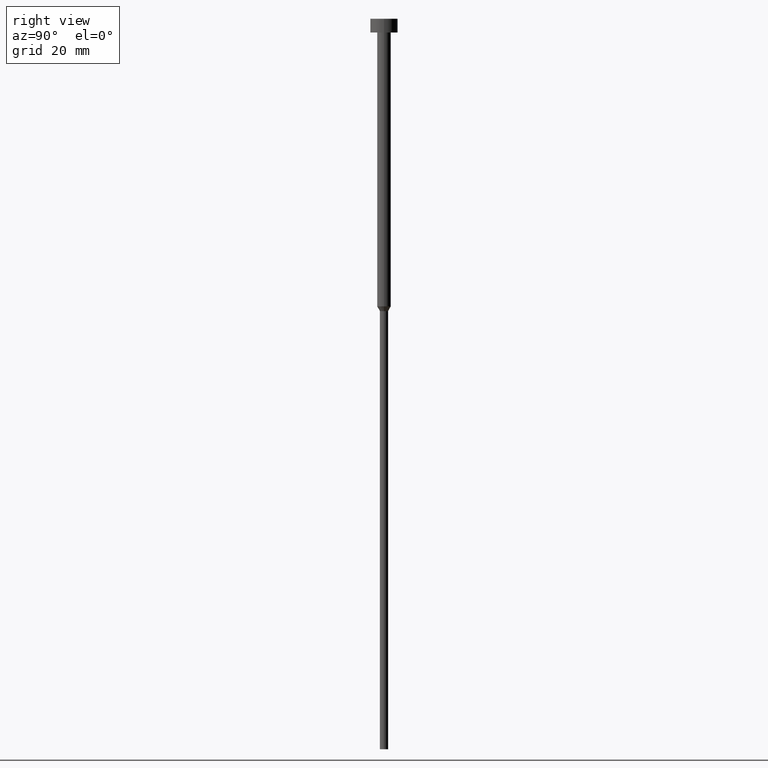
[diagram: clean part render]
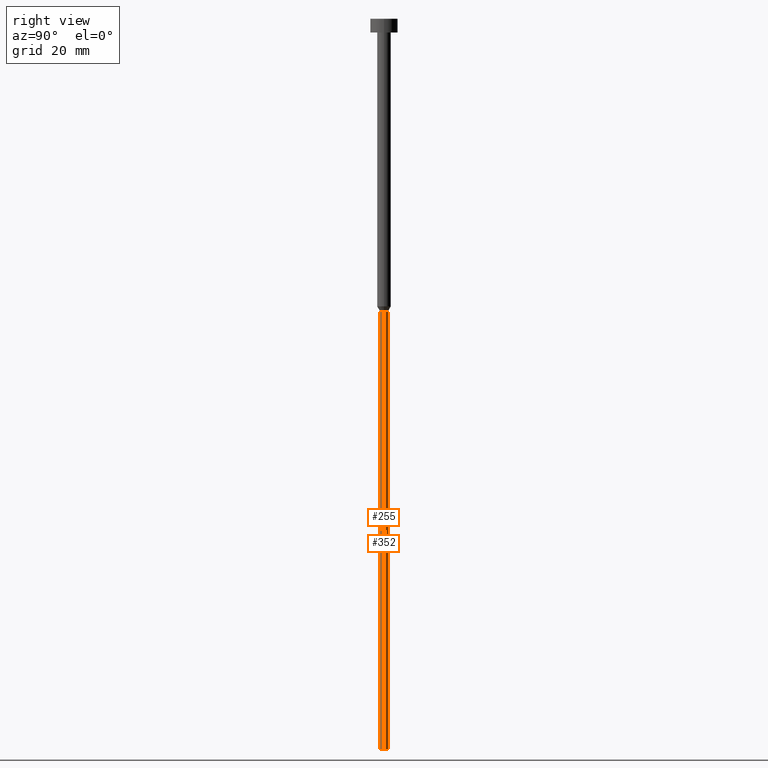
[diagram: same view with one multi-face feature highlighted, each face labeled with its STEP entity id]
A machine part, right view. The highlighted faces form ONE feature: a constant-radius fillet chain: 2 tangent blend faces with common blend radius 0.9 mm. The faces share edges in the B-rep.
Their STEP definitions:
[1] entity #352 (Cylinder):
#6 = AXIS2_PLACEMENT_3D ( 'NONE', #308, #95, #64 ) ;
#19 = VERTEX_POINT ( 'NONE', #156 ) ;
#22 = ORIENTED_EDGE ( 'NONE', *, *, #91, .T. ) ;
#34 = CIRCLE ( 'NONE', #134, 0.9000000000000000222 ) ;
#36 = CYLINDRICAL_SURFACE ( 'NONE', #6, 0.9000000000000000222 ) ;
#55 = CARTESIAN_POINT ( 'NONE',  ( 0.9000000000000000222, 0.000000000000000000, -160.0000000000000000 ) ) ;
#64 = DIRECTION ( 'NONE',  ( 1.000000000000000000, 0.000000000000000000, 0.000000000000000000 ) ) ;
#71 = ORIENTED_EDGE ( 'NONE', *, *, #152, .T. ) ;
#91 = EDGE_CURVE ( 'NONE', #205, #321, #349, .T. ) ;
#93 = VECTOR ( 'NONE', #249, 1000.000000000000000 ) ;
#95 = DIRECTION ( 'NONE',  ( -0.000000000000000000, -0.000000000000000000, 1.000000000000000000 ) ) ;
#127 = VERTEX_POINT ( 'NONE', #355 ) ;
#128 = AXIS2_PLACEMENT_3D ( 'NONE', #248, #160, #295 ) ;
#133 = CARTESIAN_POINT ( 'NONE',  ( -0.9000000000000000222, 1.102182119232617788E-16, 0.000000000000000000 ) ) ;
#134 = AXIS2_PLACEMENT_3D ( 'NONE', #307, #253, #141 ) ;
#139 = FACE_OUTER_BOUND ( 'NONE', #305, .T. ) ;
#141 = DIRECTION ( 'NONE',  ( 1.000000000000000000, 0.000000000000000000, 0.000000000000000000 ) ) ;
#152 = EDGE_CURVE ( 'NONE', #321, #19, #214, .T. ) ;
#154 = ORIENTED_EDGE ( 'NONE', *, *, #243, .F. ) ;
#156 = CARTESIAN_POINT ( 'NONE',  ( -0.9000000000000000222, 1.102182119232617788E-16, -64.03923048454132072 ) ) ;
#160 = DIRECTION ( 'NONE',  ( -0.000000000000000000, -0.000000000000000000, 1.000000000000000000 ) ) ;
#163 = CARTESIAN_POINT ( 'NONE',  ( -0.9000000000000000222, 1.102182119232617788E-16, -160.0000000000000000 ) ) ;
#205 = VERTEX_POINT ( 'NONE', #55 ) ;
#207 = VECTOR ( 'NONE', #209, 1000.000000000000000 ) ;
#209 = DIRECTION ( 'NONE',  ( -0.000000000000000000, -0.000000000000000000, 1.000000000000000000 ) ) ;
#214 = LINE ( 'NONE', #133, #207 ) ;
#222 = LINE ( 'NONE', #250, #93 ) ;
#243 = EDGE_CURVE ( 'NONE', #205, #127, #222, .T. ) ;
#248 = CARTESIAN_POINT ( 'NONE',  ( 0.000000000000000000, 0.000000000000000000, -160.0000000000000000 ) ) ;
#249 = DIRECTION ( 'NONE',  ( -0.000000000000000000, -0.000000000000000000, 1.000000000000000000 ) ) ;
#250 = CARTESIAN_POINT ( 'NONE',  ( 0.9000000000000000222, 0.000000000000000000, 0.000000000000000000 ) ) ;
#253 = DIRECTION ( 'NONE',  ( -0.000000000000000000, -0.000000000000000000, 1.000000000000000000 ) ) ;
#257 = ORIENTED_EDGE ( 'NONE', *, *, #265, .F. ) ;
#265 = EDGE_CURVE ( 'NONE', #127, #19, #34, .T. ) ;
#295 = DIRECTION ( 'NONE',  ( 1.000000000000000000, 0.000000000000000000, 0.000000000000000000 ) ) ;
#305 = EDGE_LOOP ( 'NONE', ( #22, #71, #257, #154 ) ) ;
#307 = CARTESIAN_POINT ( 'NONE',  ( 0.000000000000000000, 0.000000000000000000, -64.03923048454132072 ) ) ;
#308 = CARTESIAN_POINT ( 'NONE',  ( 0.000000000000000000, 0.000000000000000000, 0.000000000000000000 ) ) ;
#321 = VERTEX_POINT ( 'NONE', #163 ) ;
#349 = CIRCLE ( 'NONE', #128, 0.9000000000000000222 ) ;
#352 = ADVANCED_FACE ( 'NONE', ( #139 ), #36, .T. ) ;
#355 = CARTESIAN_POINT ( 'NONE',  ( 0.9000000000000000222, 0.000000000000000000, -64.03923048454132072 ) ) ;
[2] entity #255 (Cylinder):
#13 = EDGE_LOOP ( 'NONE', ( #149, #151, #169, #100 ) ) ;
#19 = VERTEX_POINT ( 'NONE', #156 ) ;
#23 = AXIS2_PLACEMENT_3D ( 'NONE', #30, #245, #273 ) ;
#26 = DIRECTION ( 'NONE',  ( 1.000000000000000000, 0.000000000000000000, 0.000000000000000000 ) ) ;
#30 = CARTESIAN_POINT ( 'NONE',  ( 0.000000000000000000, 0.000000000000000000, -64.03923048454132072 ) ) ;
#53 = EDGE_CURVE ( 'NONE', #321, #205, #271, .T. ) ;
#54 = AXIS2_PLACEMENT_3D ( 'NONE', #220, #334, #142 ) ;
#55 = CARTESIAN_POINT ( 'NONE',  ( 0.9000000000000000222, 0.000000000000000000, -160.0000000000000000 ) ) ;
#57 = DIRECTION ( 'NONE',  ( -0.000000000000000000, -0.000000000000000000, 1.000000000000000000 ) ) ;
#67 = CYLINDRICAL_SURFACE ( 'NONE', #54, 0.9000000000000000222 ) ;
#93 = VECTOR ( 'NONE', #249, 1000.000000000000000 ) ;
#100 = ORIENTED_EDGE ( 'NONE', *, *, #109, .F. ) ;
#109 = EDGE_CURVE ( 'NONE', #19, #127, #332, .T. ) ;
#127 = VERTEX_POINT ( 'NONE', #355 ) ;
#133 = CARTESIAN_POINT ( 'NONE',  ( -0.9000000000000000222, 1.102182119232617788E-16, 0.000000000000000000 ) ) ;
#142 = DIRECTION ( 'NONE',  ( 1.000000000000000000, 0.000000000000000000, 0.000000000000000000 ) ) ;
#145 = FACE_OUTER_BOUND ( 'NONE', #13, .T. ) ;
#149 = ORIENTED_EDGE ( 'NONE', *, *, #152, .F. ) ;
#151 = ORIENTED_EDGE ( 'NONE', *, *, #53, .T. ) ;
#152 = EDGE_CURVE ( 'NONE', #321, #19, #214, .T. ) ;
#156 = CARTESIAN_POINT ( 'NONE',  ( -0.9000000000000000222, 1.102182119232617788E-16, -64.03923048454132072 ) ) ;
#163 = CARTESIAN_POINT ( 'NONE',  ( -0.9000000000000000222, 1.102182119232617788E-16, -160.0000000000000000 ) ) ;
#169 = ORIENTED_EDGE ( 'NONE', *, *, #243, .T. ) ;
#205 = VERTEX_POINT ( 'NONE', #55 ) ;
#207 = VECTOR ( 'NONE', #209, 1000.000000000000000 ) ;
#209 = DIRECTION ( 'NONE',  ( -0.000000000000000000, -0.000000000000000000, 1.000000000000000000 ) ) ;
#214 = LINE ( 'NONE', #133, #207 ) ;
#220 = CARTESIAN_POINT ( 'NONE',  ( 0.000000000000000000, 0.000000000000000000, 0.000000000000000000 ) ) ;
#222 = LINE ( 'NONE', #250, #93 ) ;
#243 = EDGE_CURVE ( 'NONE', #205, #127, #222, .T. ) ;
#245 = DIRECTION ( 'NONE',  ( -0.000000000000000000, -0.000000000000000000, 1.000000000000000000 ) ) ;
#249 = DIRECTION ( 'NONE',  ( -0.000000000000000000, -0.000000000000000000, 1.000000000000000000 ) ) ;
#250 = CARTESIAN_POINT ( 'NONE',  ( 0.9000000000000000222, 0.000000000000000000, 0.000000000000000000 ) ) ;
#255 = ADVANCED_FACE ( 'NONE', ( #145 ), #67, .T. ) ;
#271 = CIRCLE ( 'NONE', #299, 0.9000000000000000222 ) ;
#273 = DIRECTION ( 'NONE',  ( 1.000000000000000000, 0.000000000000000000, 0.000000000000000000 ) ) ;
#299 = AXIS2_PLACEMENT_3D ( 'NONE', #326, #57, #26 ) ;
#321 = VERTEX_POINT ( 'NONE', #163 ) ;
#326 = CARTESIAN_POINT ( 'NONE',  ( 0.000000000000000000, 0.000000000000000000, -160.0000000000000000 ) ) ;
#332 = CIRCLE ( 'NONE', #23, 0.9000000000000000222 ) ;
#334 = DIRECTION ( 'NONE',  ( -0.000000000000000000, -0.000000000000000000, 1.000000000000000000 ) ) ;
#355 = CARTESIAN_POINT ( 'NONE',  ( 0.9000000000000000222, 0.000000000000000000, -64.03923048454132072 ) ) ;